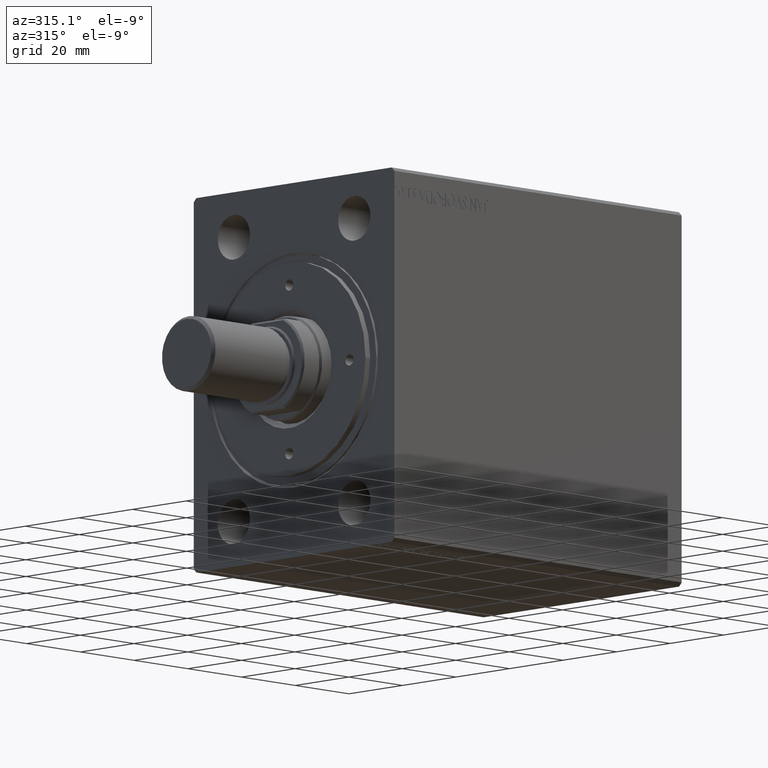
[diagram: clean part render]
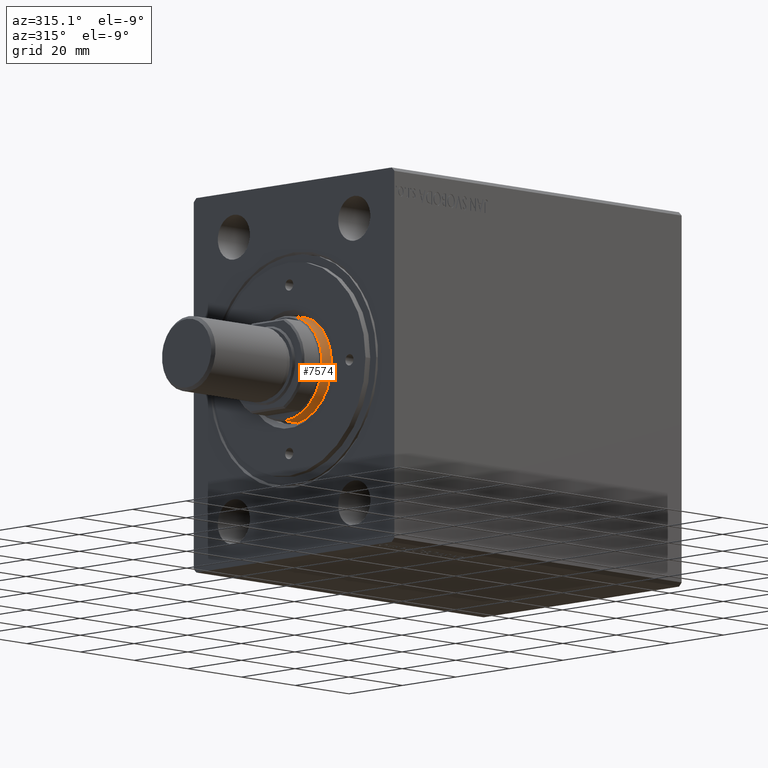
[diagram: same view with one face highlighted and labeled with its STEP entity id]
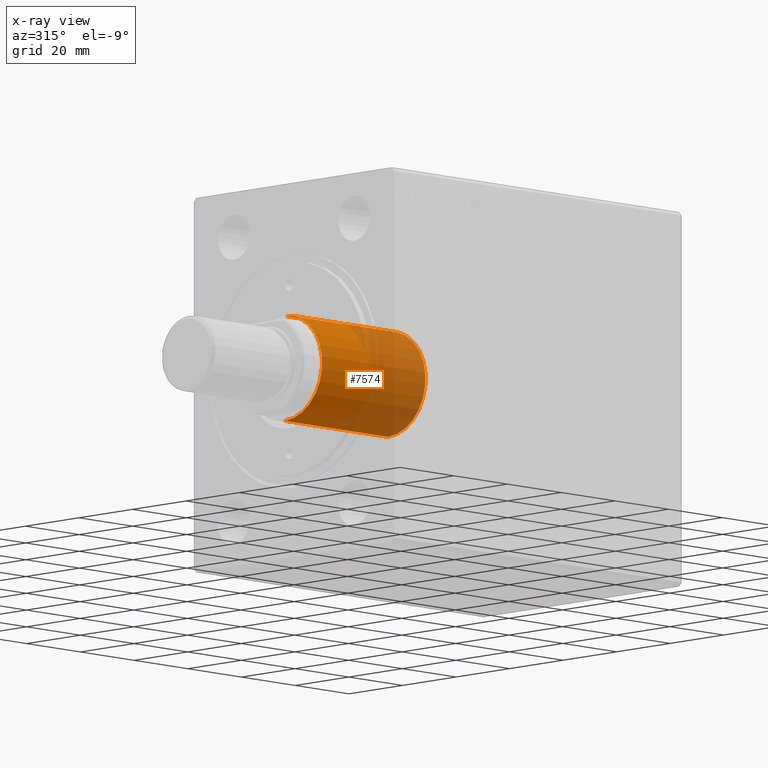
[diagram: x-ray of the same camera — body ghosted, the highlighted face saturated]
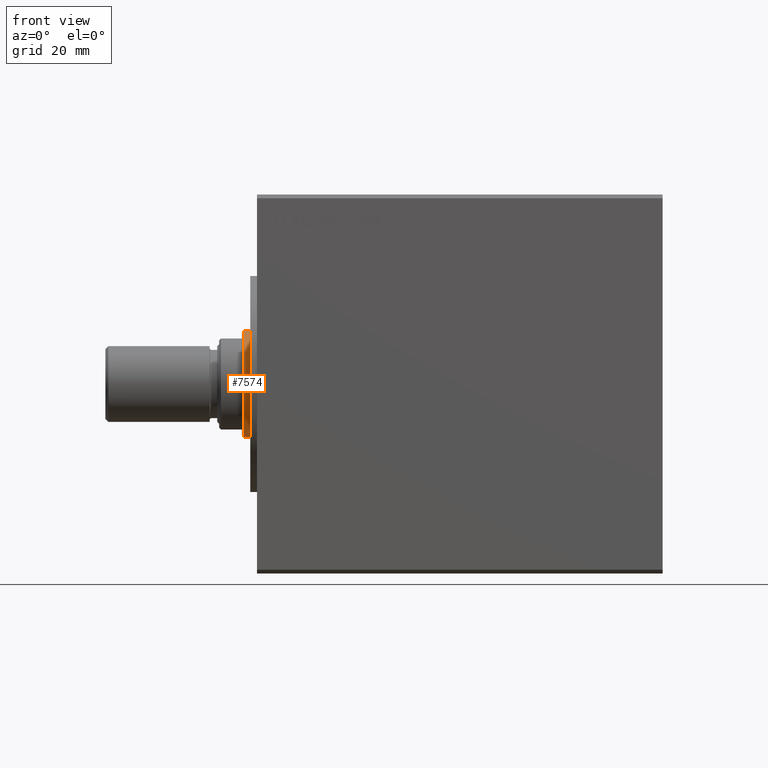
[diagram: same view with one face highlighted and labeled with its STEP entity id]
A machine part, auxiliary view. The second image highlights one B-rep face of the part: STEP entity #7574.
The next image is the same camera in x-ray: the body ghosted, the highlighted face saturated — about 54% of this face is hidden behind the body in this view.
A second angle (front view) of the same face is appended — the face is thin or edge-on in the first view.
In plain terms, the highlighted cylindrical surface (partial cylindrical patch) has radius 14 mm, axis along (1, -0, -0).
Its self-contained STEP definition (entity closure, byte-faithful):
#486 = DIRECTION ( 'NONE',  ( -1.000000000000000000, 0.000000000000000000, 0.000000000000000000 ) ) ;
#1255 = AXIS2_PLACEMENT_3D ( 'NONE', #9255, #22970, #39806 ) ;
#2943 = CARTESIAN_POINT ( 'NONE',  ( 14.00000000000000000, 1.714505518806294638E-15, 54.20000000000000284 ) ) ;
#5352 = ORIENTED_EDGE ( 'NONE', *, *, #43917, .T. ) ;
#6067 = CARTESIAN_POINT ( 'NONE',  ( -14.00000000000000000, 0.000000000000000000, 92.69999999999997442 ) ) ;
#7574 = ADVANCED_FACE ( 'NONE', ( #34879 ), #35319, .T. ) ;
#9255 = CARTESIAN_POINT ( 'NONE',  ( 0.000000000000000000, 0.000000000000000000, 92.69999999999997442 ) ) ;
#9963 = VERTEX_POINT ( 'NONE', #6067 ) ;
#12981 = LINE ( 'NONE', #30930, #17706 ) ;
#14958 = DIRECTION ( 'NONE',  ( -0.000000000000000000, -0.000000000000000000, -1.000000000000000000 ) ) ;
#15040 = EDGE_CURVE ( 'NONE', #27151, #37947, #44145, .T. ) ;
#17706 = VECTOR ( 'NONE', #40382, 1000.000000000000000 ) ;
#17838 = CARTESIAN_POINT ( 'NONE',  ( 0.000000000000000000, 0.000000000000000000, 93.20000000000000284 ) ) ;
#18338 = AXIS2_PLACEMENT_3D ( 'NONE', #18404, #21973, #35238 ) ;
#18404 = CARTESIAN_POINT ( 'NONE',  ( 0.000000000000000000, 0.000000000000000000, 54.20000000000000284 ) ) ;
#20732 = VECTOR ( 'NONE', #14958, 1000.000000000000000 ) ;
#21018 = ORIENTED_EDGE ( 'NONE', *, *, #37800, .T. ) ;
#21973 = DIRECTION ( 'NONE',  ( 0.000000000000000000, 0.000000000000000000, 1.000000000000000000 ) ) ;
#22529 = CARTESIAN_POINT ( 'NONE',  ( 14.00000000000000000, 1.714505518806294638E-15, 92.69999999999997442 ) ) ;
#22970 = DIRECTION ( 'NONE',  ( 0.000000000000000000, 0.000000000000000000, -1.000000000000000000 ) ) ;
#23246 = AXIS2_PLACEMENT_3D ( 'NONE', #17838, #41188, #486 ) ;
#24093 = ORIENTED_EDGE ( 'NONE', *, *, #32498, .F. ) ;
#24855 = CARTESIAN_POINT ( 'NONE',  ( -14.00000000000000000, 0.000000000000000000, 93.20000000000000284 ) ) ;
#25392 = ORIENTED_EDGE ( 'NONE', *, *, #15040, .T. ) ;
#27151 = VERTEX_POINT ( 'NONE', #36723 ) ;
#30930 = CARTESIAN_POINT ( 'NONE',  ( 14.00000000000000000, 1.714505518806294638E-15, 93.20000000000000284 ) ) ;
#32498 = EDGE_CURVE ( 'NONE', #40076, #37947, #12981, .T. ) ;
#33512 = EDGE_LOOP ( 'NONE', ( #24093, #21018, #5352, #25392 ) ) ;
#34879 = FACE_OUTER_BOUND ( 'NONE', #33512, .T. ) ;
#35238 = DIRECTION ( 'NONE',  ( 1.000000000000000000, 0.000000000000000000, 0.000000000000000000 ) ) ;
#35319 = CYLINDRICAL_SURFACE ( 'NONE', #23246, 14.00000000000000000 ) ;
#35609 = LINE ( 'NONE', #24855, #20732 ) ;
#36723 = CARTESIAN_POINT ( 'NONE',  ( -14.00000000000000000, 0.000000000000000000, 54.20000000000000284 ) ) ;
#37800 = EDGE_CURVE ( 'NONE', #40076, #9963, #44381, .T. ) ;
#37947 = VERTEX_POINT ( 'NONE', #2943 ) ;
#39806 = DIRECTION ( 'NONE',  ( 1.000000000000000000, 0.000000000000000000, 0.000000000000000000 ) ) ;
#40076 = VERTEX_POINT ( 'NONE', #22529 ) ;
#40382 = DIRECTION ( 'NONE',  ( -0.000000000000000000, -0.000000000000000000, -1.000000000000000000 ) ) ;
#41188 = DIRECTION ( 'NONE',  ( -0.000000000000000000, -0.000000000000000000, -1.000000000000000000 ) ) ;
#43917 = EDGE_CURVE ( 'NONE', #9963, #27151, #35609, .T. ) ;
#44145 = CIRCLE ( 'NONE', #18338, 14.00000000000000000 ) ;
#44381 = CIRCLE ( 'NONE', #1255, 14.00000000000000000 ) ;